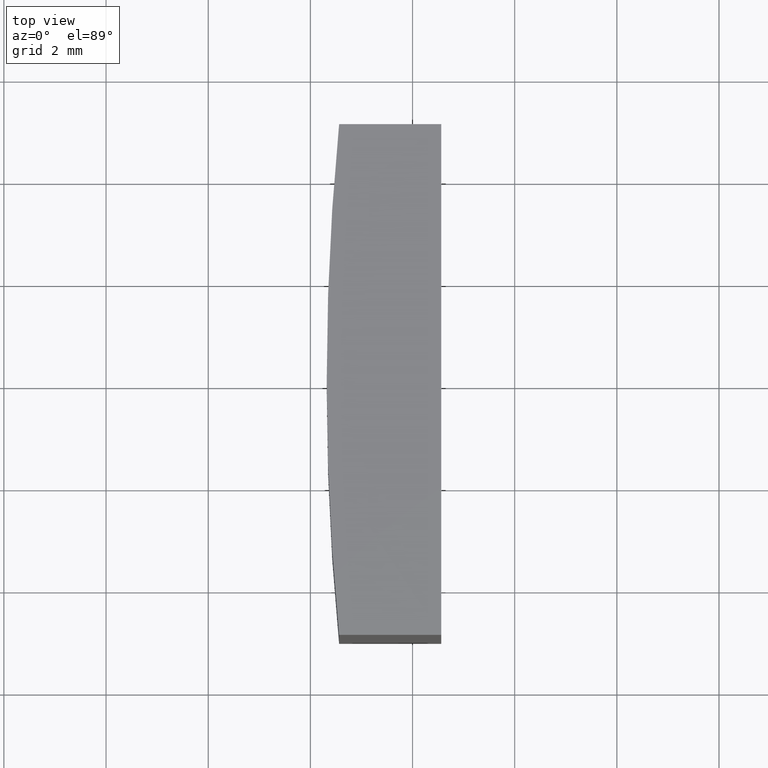
[diagram: clean part render]
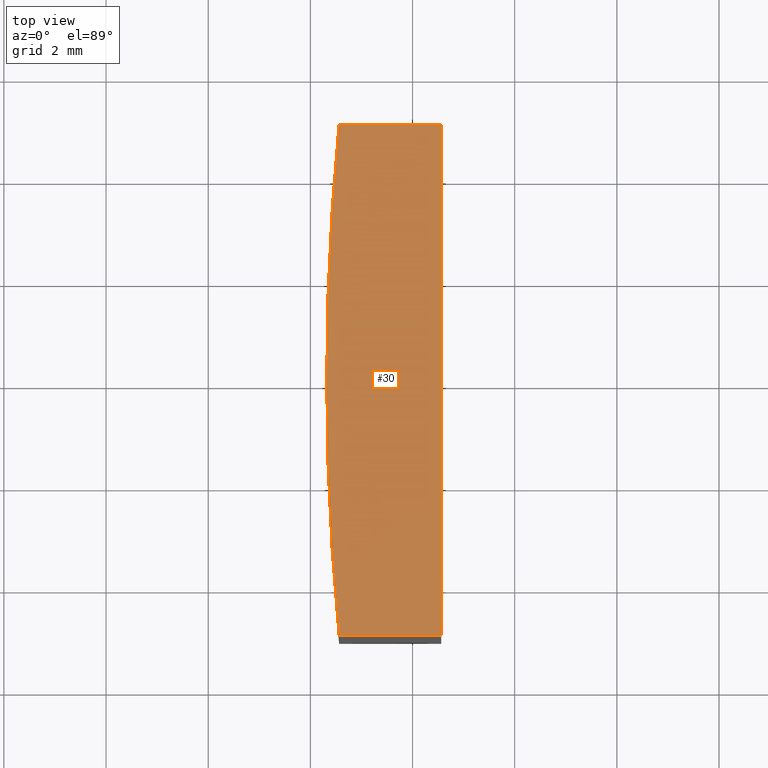
[diagram: same view with one face highlighted and labeled with its STEP entity id]
A machine part, top view. The second image highlights one B-rep face of the part: STEP entity #30.
In plain terms, the highlighted planar face has unit normal (0, 0, 1).
Its self-contained STEP definition (entity closure, byte-faithful):
#3 = AXIS2_PLACEMENT_3D ( 'NONE', #217, #176, #85 ) ;
#4 = CARTESIAN_POINT ( 'NONE',  ( -51.43755826242143314, -5.000000000000000888, 10.00000000000000000 ) ) ;
#9 = CARTESIAN_POINT ( 'NONE',  ( 0.000000000000000000, 0.000000000000000000, 10.00000000000000000 ) ) ;
#18 = VERTEX_POINT ( 'NONE', #145 ) ;
#24 = LINE ( 'NONE', #4, #99 ) ;
#25 = CARTESIAN_POINT ( 'NONE',  ( -51.43755826242143314, 5.000000000000000888, 10.00000000000000000 ) ) ;
#30 = ADVANCED_FACE ( 'NONE', ( #53 ), #198, .T. ) ;
#37 = VERTEX_POINT ( 'NONE', #48 ) ;
#48 = CARTESIAN_POINT ( 'NONE',  ( -49.43755826242143314, 5.000000000000000888, 10.00000000000000000 ) ) ;
#53 = FACE_OUTER_BOUND ( 'NONE', #91, .T. ) ;
#54 = EDGE_CURVE ( 'NONE', #271, #105, #129, .T. ) ;
#60 = LINE ( 'NONE', #167, #131 ) ;
#65 = EDGE_CURVE ( 'NONE', #18, #267, #24, .T. ) ;
#70 = AXIS2_PLACEMENT_3D ( 'NONE', #9, #152, #134 ) ;
#72 = ORIENTED_EDGE ( 'NONE', *, *, #124, .T. ) ;
#82 = DIRECTION ( 'NONE',  ( 1.000000000000000000, 0.000000000000000000, 0.000000000000000000 ) ) ;
#85 = DIRECTION ( 'NONE',  ( 1.000000000000000000, 0.000000000000000000, 0.000000000000000000 ) ) ;
#91 = EDGE_LOOP ( 'NONE', ( #189, #72, #162, #115, #220 ) ) ;
#97 = DIRECTION ( 'NONE',  ( -0.000000000000000000, 1.000000000000000000, -0.000000000000000000 ) ) ;
#99 = VECTOR ( 'NONE', #82, 1000.000000000000000 ) ;
#105 = VERTEX_POINT ( 'NONE', #255 ) ;
#106 = VECTOR ( 'NONE', #215, 1000.000000000000000 ) ;
#107 = DIRECTION ( 'NONE',  ( 1.000000000000000000, 0.000000000000000000, -0.000000000000000000 ) ) ;
#115 = ORIENTED_EDGE ( 'NONE', *, *, #257, .T. ) ;
#124 = EDGE_CURVE ( 'NONE', #105, #18, #197, .T. ) ;
#129 = CIRCLE ( 'NONE', #3, 51.67999999999999972 ) ;
#131 = VECTOR ( 'NONE', #97, 1000.000000000000000 ) ;
#133 = EDGE_CURVE ( 'NONE', #37, #271, #232, .T. ) ;
#134 = DIRECTION ( 'NONE',  ( 1.000000000000000000, 0.000000000000000000, 0.000000000000000000 ) ) ;
#138 = DIRECTION ( 'NONE',  ( 0.000000000000000000, 0.000000000000000000, 1.000000000000000000 ) ) ;
#145 = CARTESIAN_POINT ( 'NONE',  ( -51.43755826242143314, -5.000000000000000888, 10.00000000000000000 ) ) ;
#152 = DIRECTION ( 'NONE',  ( 0.000000000000000000, 0.000000000000000000, 1.000000000000000000 ) ) ;
#162 = ORIENTED_EDGE ( 'NONE', *, *, #65, .T. ) ;
#167 = CARTESIAN_POINT ( 'NONE',  ( -49.43755826242143314, 5.000000000000000888, 10.00000000000000000 ) ) ;
#176 = DIRECTION ( 'NONE',  ( 0.000000000000000000, 0.000000000000000000, 1.000000000000000000 ) ) ;
#180 = AXIS2_PLACEMENT_3D ( 'NONE', #236, #138, #107 ) ;
#189 = ORIENTED_EDGE ( 'NONE', *, *, #54, .T. ) ;
#197 = CIRCLE ( 'NONE', #70, 51.67999999999999972 ) ;
#198 = PLANE ( 'NONE',  #180 ) ;
#215 = DIRECTION ( 'NONE',  ( -1.000000000000000000, -0.000000000000000000, -0.000000000000000000 ) ) ;
#217 = CARTESIAN_POINT ( 'NONE',  ( 0.000000000000000000, 0.000000000000000000, 10.00000000000000000 ) ) ;
#220 = ORIENTED_EDGE ( 'NONE', *, *, #133, .T. ) ;
#229 = CARTESIAN_POINT ( 'NONE',  ( -49.43755826242143314, -5.000000000000000888, 10.00000000000000000 ) ) ;
#232 = LINE ( 'NONE', #25, #106 ) ;
#236 = CARTESIAN_POINT ( 'NONE',  ( 0.000000000000000000, 0.000000000000000000, 10.00000000000000000 ) ) ;
#247 = CARTESIAN_POINT ( 'NONE',  ( -51.43755826242143314, 5.000000000000000888, 10.00000000000000000 ) ) ;
#255 = CARTESIAN_POINT ( 'NONE',  ( -51.67999999999999972, 0.000000000000000000, 10.00000000000000000 ) ) ;
#257 = EDGE_CURVE ( 'NONE', #267, #37, #60, .T. ) ;
#267 = VERTEX_POINT ( 'NONE', #229 ) ;
#271 = VERTEX_POINT ( 'NONE', #247 ) ;